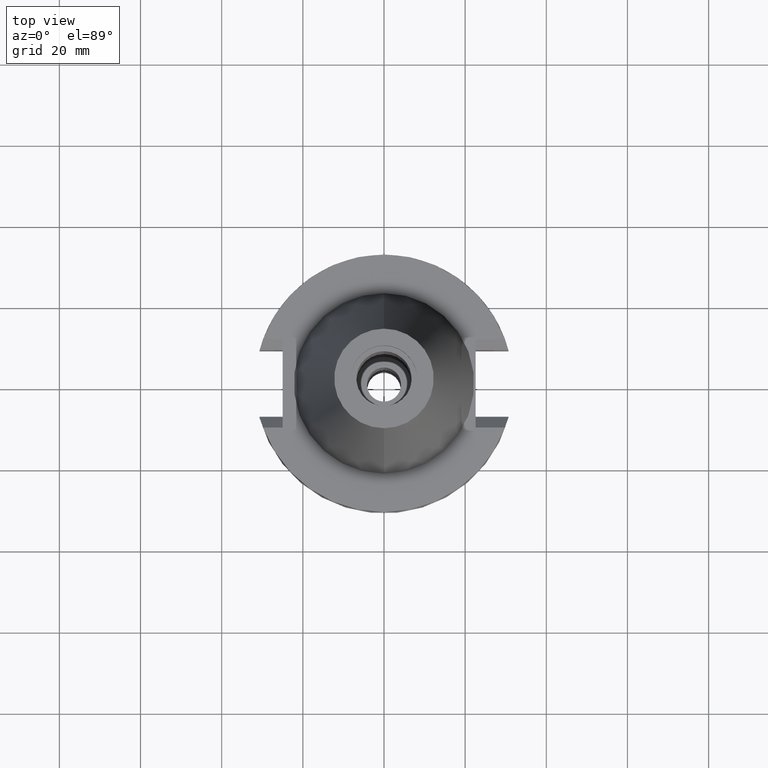
[diagram: clean part render]
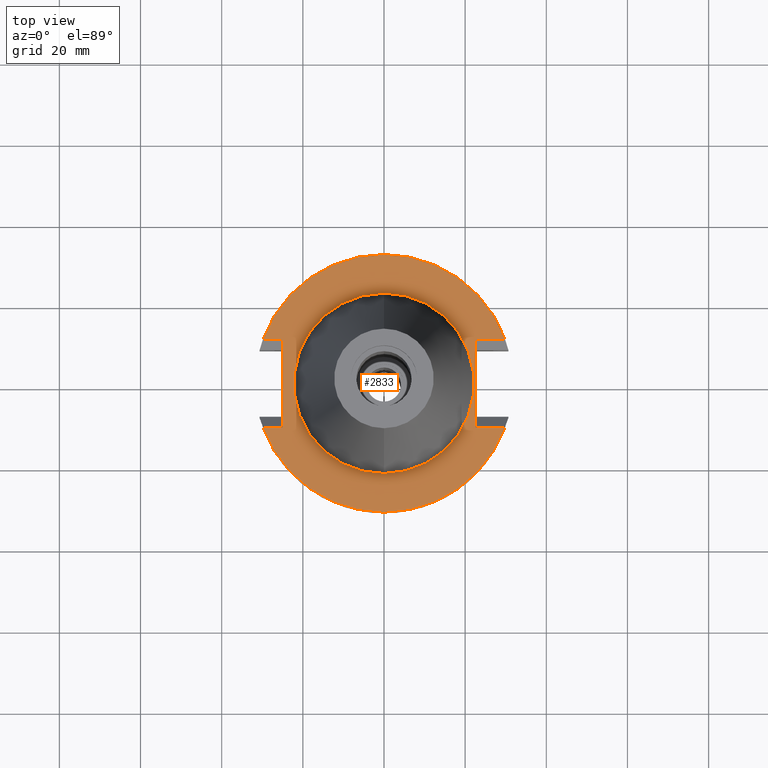
[diagram: same view with one face highlighted and labeled with its STEP entity id]
A machine part, top view. The second image highlights one B-rep face of the part: STEP entity #2833.
In plain terms, the highlighted planar face has unit normal (0, 0, -1).
Its self-contained STEP definition (entity closure, byte-faithful):
#7 = VECTOR ( 'NONE', #1011, 1000.000000000000000 ) ;
#11 = FACE_OUTER_BOUND ( 'NONE', #39, .T. ) ;
#13 = EDGE_CURVE ( 'NONE', #632, #2871, #971, .T. ) ;
#30 = EDGE_CURVE ( 'NONE', #2374, #1090, #1203, .T. ) ;
#39 = EDGE_LOOP ( 'NONE', ( #3116, #2046, #402, #1685, #2163, #1087, #1594, #2810 ) ) ;
#71 = CARTESIAN_POINT ( 'NONE',  ( -24.98000000000000043, -10.89000000000000057, -1.000000000000000000 ) ) ;
#139 = CARTESIAN_POINT ( 'NONE',  ( -24.98000000000000043, 10.89000000000000057, -1.000000000000000000 ) ) ;
#141 = CARTESIAN_POINT ( 'NONE',  ( 0.0000000000000000000, -22.22500000000000142, -0.9999999999999000799 ) ) ;
#146 = VERTEX_POINT ( 'NONE', #1644 ) ;
#152 = EDGE_CURVE ( 'NONE', #1605, #1551, #267, .T. ) ;
#245 = DIRECTION ( 'NONE',  ( 0.0000000000000000000, 1.000000000000000000, 0.0000000000000000000 ) ) ;
#267 = CIRCLE ( 'NONE', #330, 22.22500000000000142 ) ;
#269 = CARTESIAN_POINT ( 'NONE',  ( -24.98000000000000043, 10.89000000000000057, -1.000000000000000000 ) ) ;
#278 = ORIENTED_EDGE ( 'NONE', *, *, #152, .F. ) ;
#279 = DIRECTION ( 'NONE',  ( 0.0000000000000000000, 0.0000000000000000000, 1.000000000000000000 ) ) ;
#330 = AXIS2_PLACEMENT_3D ( 'NONE', #1321, #838, #245 ) ;
#337 = EDGE_CURVE ( 'NONE', #146, #1090, #2421, .T. ) ;
#402 = ORIENTED_EDGE ( 'NONE', *, *, #772, .F. ) ;
#405 = CARTESIAN_POINT ( 'NONE',  ( 0.0000000000000000000, 22.22500000000000142, -0.9999999999999000799 ) ) ;
#454 = CARTESIAN_POINT ( 'NONE',  ( 22.57000000000000028, 10.89000000000000057, -1.000000000000000000 ) ) ;
#530 = LINE ( 'NONE', #269, #2606 ) ;
#609 = VERTEX_POINT ( 'NONE', #1354 ) ;
#623 = VERTEX_POINT ( 'NONE', #2299 ) ;
#632 = VERTEX_POINT ( 'NONE', #71 ) ;
#676 = DIRECTION ( 'NONE',  ( 0.0000000000000000000, 0.0000000000000000000, -1.000000000000000000 ) ) ;
#711 = DIRECTION ( 'NONE',  ( 0.0000000000000000000, 1.000000000000000000, 0.0000000000000000000 ) ) ;
#763 = CARTESIAN_POINT ( 'NONE',  ( 0.0000000000000000000, 1.212400331155999925E-14, -1.000000000000000000 ) ) ;
#772 = EDGE_CURVE ( 'NONE', #623, #146, #1845, .T. ) ;
#835 = CARTESIAN_POINT ( 'NONE',  ( -29.82399034335000110, -10.89000000000000057, -1.000000000001000089 ) ) ;
#838 = DIRECTION ( 'NONE',  ( 0.0000000000000000000, 0.0000000000000000000, 1.000000000000000000 ) ) ;
#921 = CIRCLE ( 'NONE', #1540, 22.22500000000000142 ) ;
#939 = EDGE_CURVE ( 'NONE', #1551, #1605, #921, .T. ) ;
#971 = LINE ( 'NONE', #1951, #1810 ) ;
#974 = LINE ( 'NONE', #1953, #3011 ) ;
#979 = CIRCLE ( 'NONE', #1445, 31.75000000000000000 ) ;
#1003 = FACE_BOUND ( 'NONE', #1776, .T. ) ;
#1011 = DIRECTION ( 'NONE',  ( 1.000000000000000000, -5.877118954907999932E-14, 0.0000000000000000000 ) ) ;
#1020 = AXIS2_PLACEMENT_3D ( 'NONE', #1174, #676, #711 ) ;
#1087 = ORIENTED_EDGE ( 'NONE', *, *, #1475, .F. ) ;
#1090 = VERTEX_POINT ( 'NONE', #2111 ) ;
#1126 = DIRECTION ( 'NONE',  ( 0.0000000000000000000, -1.000000000000000000, 0.0000000000000000000 ) ) ;
#1127 = DIRECTION ( 'NONE',  ( -1.000000000000000000, -8.911138986208999927E-14, 0.0000000000000000000 ) ) ;
#1171 = VERTEX_POINT ( 'NONE', #1943 ) ;
#1174 = CARTESIAN_POINT ( 'NONE',  ( 0.0000000000000000000, 2.153878174169999899E-14, -1.000000000000000000 ) ) ;
#1203 = LINE ( 'NONE', #1231, #7 ) ;
#1231 = CARTESIAN_POINT ( 'NONE',  ( 22.57000000000000028, 10.89000000000000057, -1.000000000000000000 ) ) ;
#1321 = CARTESIAN_POINT ( 'NONE',  ( 0.0000000000000000000, 2.153878174169999899E-14, -0.9999999999999000799 ) ) ;
#1354 = CARTESIAN_POINT ( 'NONE',  ( 29.82399034335000110, -10.89000000000000057, -1.000000000001000089 ) ) ;
#1445 = AXIS2_PLACEMENT_3D ( 'NONE', #2273, #2521, #2494 ) ;
#1475 = EDGE_CURVE ( 'NONE', #609, #2871, #979, .T. ) ;
#1540 = AXIS2_PLACEMENT_3D ( 'NONE', #2925, #279, #1126 ) ;
#1551 = VERTEX_POINT ( 'NONE', #141 ) ;
#1554 = VECTOR ( 'NONE', #2913, 1000.000000000000000 ) ;
#1568 = DIRECTION ( 'NONE',  ( -1.000000000000000000, 8.911138986208999927E-14, 0.0000000000000000000 ) ) ;
#1594 = ORIENTED_EDGE ( 'NONE', *, *, #2278, .F. ) ;
#1605 = VERTEX_POINT ( 'NONE', #405 ) ;
#1644 = CARTESIAN_POINT ( 'NONE',  ( -29.82399034335000110, 10.89000000000000057, -1.000000000000000000 ) ) ;
#1676 = AXIS2_PLACEMENT_3D ( 'NONE', #763, #2733, #3153 ) ;
#1685 = ORIENTED_EDGE ( 'NONE', *, *, #2315, .T. ) ;
#1754 = CARTESIAN_POINT ( 'NONE',  ( 22.57000000000000028, 10.89000000000000057, -1.000000000000000000 ) ) ;
#1776 = EDGE_LOOP ( 'NONE', ( #278, #2609 ) ) ;
#1799 = EDGE_CURVE ( 'NONE', #2374, #1171, #2949, .T. ) ;
#1810 = VECTOR ( 'NONE', #1568, 1000.000000000000000 ) ;
#1845 = LINE ( 'NONE', #139, #2327 ) ;
#1943 = CARTESIAN_POINT ( 'NONE',  ( 22.57000000000000028, -10.89000000000000057, -1.000000000000000000 ) ) ;
#1951 = CARTESIAN_POINT ( 'NONE',  ( -24.98000000000000043, -10.89000000000000057, -1.000000000000000000 ) ) ;
#1953 = CARTESIAN_POINT ( 'NONE',  ( 22.57000000000000028, -10.89000000000000057, -1.000000000000000000 ) ) ;
#2046 = ORIENTED_EDGE ( 'NONE', *, *, #337, .F. ) ;
#2111 = CARTESIAN_POINT ( 'NONE',  ( 29.82399034335000110, 10.89000000000000057, -1.000000000001000089 ) ) ;
#2140 = DIRECTION ( 'NONE',  ( 1.000000000000000000, 6.024046928780999571E-14, 0.0000000000000000000 ) ) ;
#2163 = ORIENTED_EDGE ( 'NONE', *, *, #13, .T. ) ;
#2273 = CARTESIAN_POINT ( 'NONE',  ( 0.0000000000000000000, 2.153878174169999899E-14, -1.000000000000000000 ) ) ;
#2278 = EDGE_CURVE ( 'NONE', #1171, #609, #974, .T. ) ;
#2299 = CARTESIAN_POINT ( 'NONE',  ( -24.98000000000000043, 10.89000000000000057, -1.000000000000000000 ) ) ;
#2315 = EDGE_CURVE ( 'NONE', #623, #632, #530, .T. ) ;
#2327 = VECTOR ( 'NONE', #1127, 1000.000000000000000 ) ;
#2374 = VERTEX_POINT ( 'NONE', #1754 ) ;
#2421 = CIRCLE ( 'NONE', #1020, 31.75000000000000000 ) ;
#2472 = DIRECTION ( 'NONE',  ( 0.0000000000000000000, -1.000000000000000000, 0.0000000000000000000 ) ) ;
#2494 = DIRECTION ( 'NONE',  ( 0.0000000000000000000, -1.000000000000000000, 0.0000000000000000000 ) ) ;
#2521 = DIRECTION ( 'NONE',  ( 0.0000000000000000000, 0.0000000000000000000, -1.000000000000000000 ) ) ;
#2606 = VECTOR ( 'NONE', #2472, 1000.000000000000000 ) ;
#2609 = ORIENTED_EDGE ( 'NONE', *, *, #939, .F. ) ;
#2733 = DIRECTION ( 'NONE',  ( 0.0000000000000000000, 0.0000000000000000000, -1.000000000000000000 ) ) ;
#2810 = ORIENTED_EDGE ( 'NONE', *, *, #1799, .F. ) ;
#2833 = ADVANCED_FACE ( 'NONE', ( #11, #1003 ), #2969, .F. ) ;
#2871 = VERTEX_POINT ( 'NONE', #835 ) ;
#2913 = DIRECTION ( 'NONE',  ( 0.0000000000000000000, -1.000000000000000000, 0.0000000000000000000 ) ) ;
#2925 = CARTESIAN_POINT ( 'NONE',  ( 0.0000000000000000000, 2.153878174169999899E-14, -0.9999999999999000799 ) ) ;
#2949 = LINE ( 'NONE', #454, #1554 ) ;
#2969 = PLANE ( 'NONE',  #1676 ) ;
#3011 = VECTOR ( 'NONE', #2140, 1000.000000000000000 ) ;
#3116 = ORIENTED_EDGE ( 'NONE', *, *, #30, .T. ) ;
#3153 = DIRECTION ( 'NONE',  ( 0.0000000000000000000, -1.000000000000000000, 0.0000000000000000000 ) ) ;